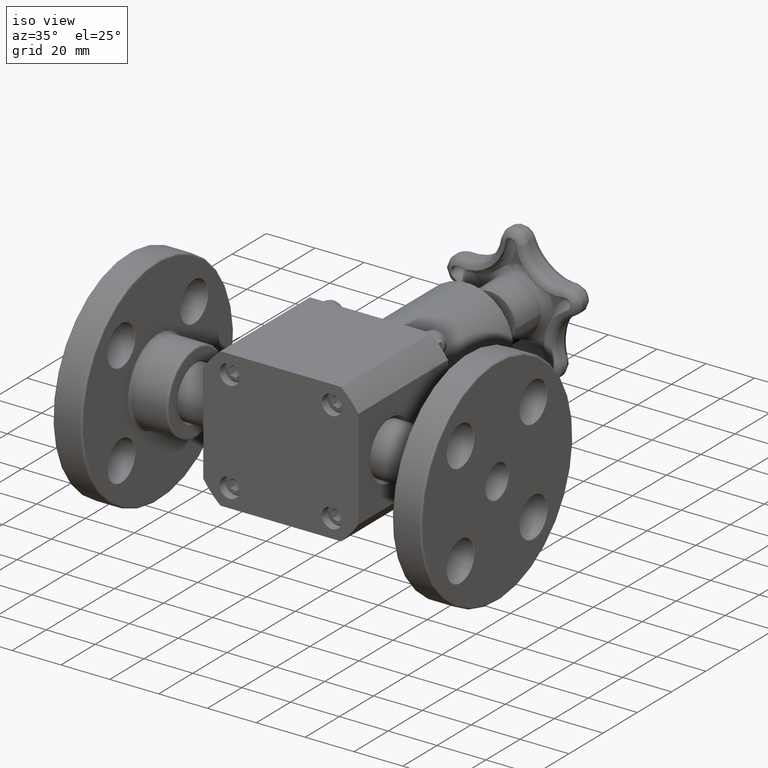
[diagram: clean part render]
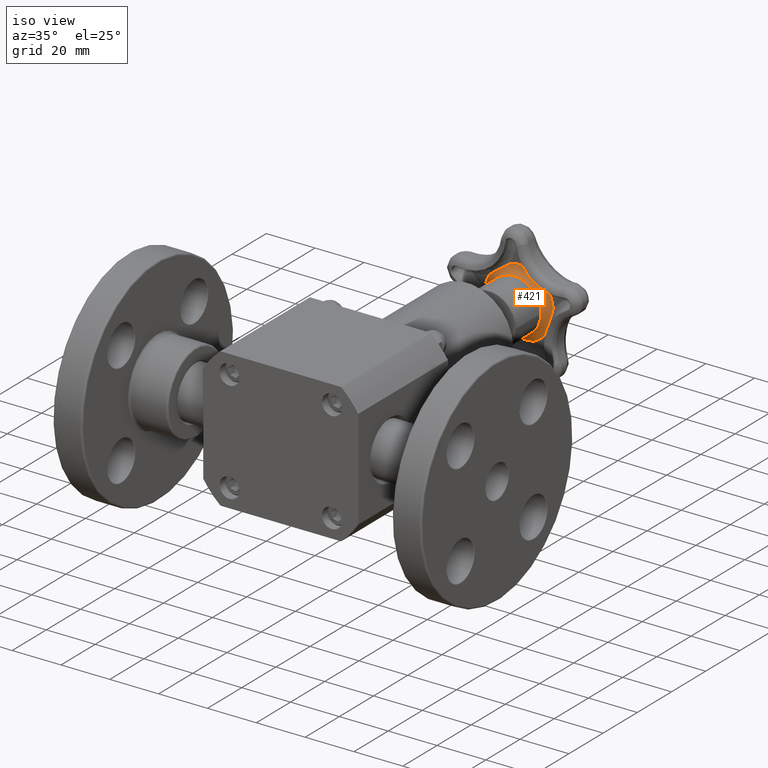
[diagram: same view with one face highlighted and labeled with its STEP entity id]
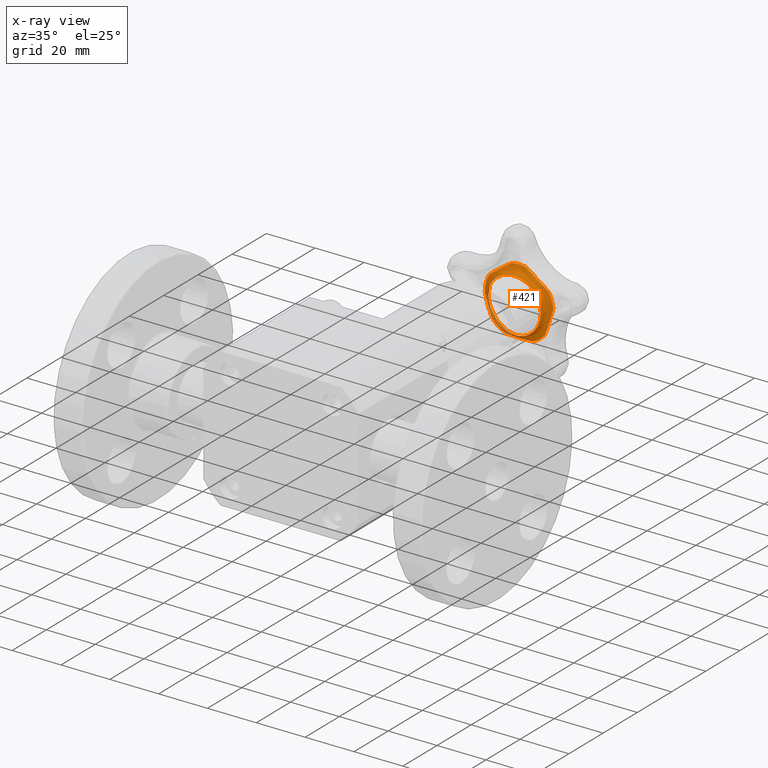
[diagram: x-ray of the same camera — body ghosted, the highlighted face saturated]
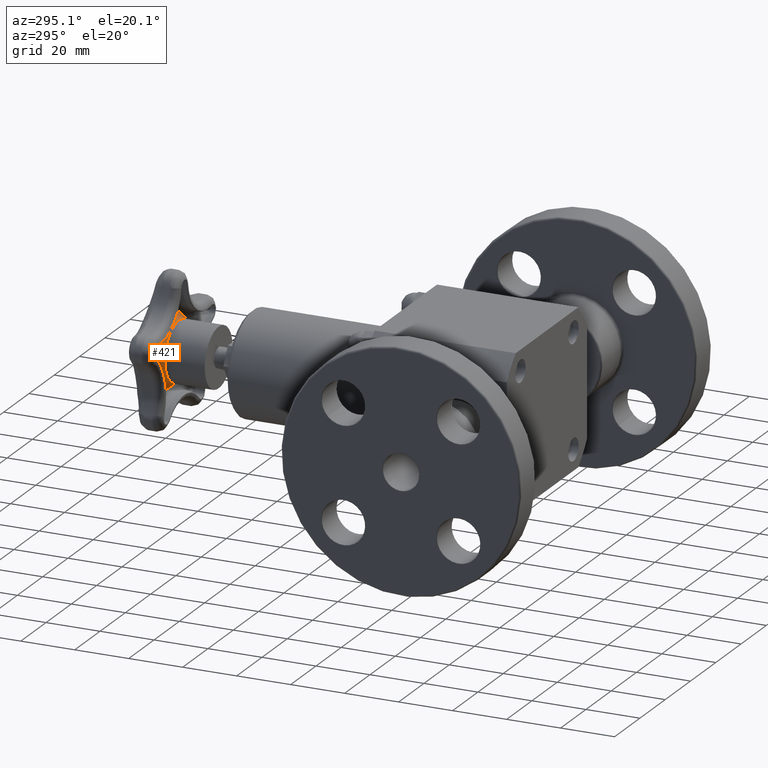
[diagram: same view with one face highlighted and labeled with its STEP entity id]
A machine part, iso view. The second image highlights one B-rep face of the part: STEP entity #421.
The next image is the same camera in x-ray: the body ghosted, the highlighted face saturated — about 10% of this face is hidden behind the body in this view.
A second angle (auxiliary view) of the same face is appended — the face is thin or edge-on in the first view.
In plain terms, the highlighted face is a freeform B-spline surface patch.
Its self-contained STEP definition (entity closure, byte-faithful):
#215=CARTESIAN_POINT('',(1.744997E-016,5.367500000000001,0.435000000000001));
#216=CARTESIAN_POINT('',(1.744997E-016,5.487500000000001,0.435000000000001));
#217=CARTESIAN_POINT('',(1.598039E-016,5.487500000000001,0.555000000000000));
#218=CARTESIAN_POINT('',(1.451082E-016,5.487500000000001,0.675000000000000));
#219=CARTESIAN_POINT('',(1.451082E-016,5.367500000000001,0.675000000000000));
#220=CARTESIAN_POINT('',(-0.435000000000000,5.367500000000001,0.435000000000000));
#221=CARTESIAN_POINT('',(-0.435000000000000,5.487500000000001,0.435000000000000));
#222=CARTESIAN_POINT('',(-0.555000000000000,5.487500000000001,0.555000000000000));
#223=CARTESIAN_POINT('',(-0.675000000000000,5.487500000000001,0.675000000000000));
#224=CARTESIAN_POINT('',(-0.675000000000000,5.367500000000001,0.675000000000000));
#225=CARTESIAN_POINT('',(-0.435000000000000,5.367500000000001,4.712427E-016));
#226=CARTESIAN_POINT('',(-0.435000000000000,5.487500000000001,4.712427E-016));
#227=CARTESIAN_POINT('',(-0.555000000000000,5.487500000000001,4.565469E-016));
#228=CARTESIAN_POINT('',(-0.675000000000000,5.487500000000001,4.418512E-016));
#229=CARTESIAN_POINT('',(-0.675000000000000,5.367500000000001,4.418512E-016));
#230=CARTESIAN_POINT('',(-0.435000000000000,5.367500000000001,-0.434999999999999));
#231=CARTESIAN_POINT('',(-0.435000000000000,5.487500000000001,-0.434999999999999));
#232=CARTESIAN_POINT('',(-0.554999999999999,5.487500000000001,-0.554999999999999));
#233=CARTESIAN_POINT('',(-0.674999999999999,5.487500000000001,-0.674999999999999));
#234=CARTESIAN_POINT('',(-0.674999999999999,5.367500000000001,-0.674999999999999));
#235=CARTESIAN_POINT('',(2.810440E-016,5.367500000000001,-0.435000000000000));
#236=CARTESIAN_POINT('',(2.810440E-016,5.487500000000001,-0.434999999999999));
#237=CARTESIAN_POINT('',(2.957397E-016,5.487500000000001,-0.554999999999999));
#238=CARTESIAN_POINT('',(3.104355E-016,5.487500000000001,-0.674999999999999));
#239=CARTESIAN_POINT('',(3.104355E-016,5.367500000000001,-0.674999999999999));
#240=CARTESIAN_POINT('',(0.435000000000000,5.367500000000001,-0.434999999999999));
#241=CARTESIAN_POINT('',(0.435000000000000,5.487500000000001,-0.434999999999999));
#242=CARTESIAN_POINT('',(0.555000000000000,5.487500000000001,-0.554999999999999));
#243=CARTESIAN_POINT('',(0.675000000000000,5.487500000000001,-0.674999999999999));
#244=CARTESIAN_POINT('',(0.675000000000000,5.367500000000001,-0.674999999999999));
#245=CARTESIAN_POINT('',(0.435000000000000,5.367500000000001,5.777870E-016));
#246=CARTESIAN_POINT('',(0.435000000000000,5.487500000000001,5.777870E-016));
#247=CARTESIAN_POINT('',(0.555000000000000,5.487500000000001,5.924827E-016));
#248=CARTESIAN_POINT('',(0.675000000000000,5.487500000000001,6.071785E-016));
#249=CARTESIAN_POINT('',(0.675000000000000,5.367500000000001,6.071785E-016));
#250=CARTESIAN_POINT('',(0.435000000000000,5.367500000000001,0.435000000000000));
#251=CARTESIAN_POINT('',(0.435000000000000,5.487500000000001,0.435000000000000));
#252=CARTESIAN_POINT('',(0.555000000000000,5.487500000000001,0.555000000000000));
#253=CARTESIAN_POINT('',(0.675000000000000,5.487500000000001,0.675000000000000));
#254=CARTESIAN_POINT('',(0.675000000000000,5.367500000000001,0.675000000000000));
#255=CARTESIAN_POINT('',(1.744997E-016,5.367500000000001,0.435000000000001));
#256=CARTESIAN_POINT('',(1.744997E-016,5.487500000000001,0.435000000000001));
#257=CARTESIAN_POINT('',(1.598039E-016,5.487500000000001,0.555000000000000));
#258=CARTESIAN_POINT('',(1.451082E-016,5.487500000000001,0.675000000000000));
#259=CARTESIAN_POINT('',(1.451082E-016,5.367500000000001,0.675000000000000));
#267=(BOUNDED_SURFACE()B_SPLINE_SURFACE(2,2,((#215,#220,#225,#230,#235,#240,#245,#250,#255),(#216,#221,#226,#231,#236,#241,#246,#251,#256),(#217,#222,#227,#232,#237,#242,#247,#252,#257),(#218,#223,#228,#233,#238,#243,#248,#253,#258),(#219,#224,#229,#234,#239,#244,#249,#254,#259)),.UNSPECIFIED.,.F.,.T.,.U.)B_SPLINE_SURFACE_WITH_KNOTS((3,2,3),(3,2,2,2,3),(-3.141592653589793,-1.570796326794897,7.843043E-031),(0.0,1.570796326794897,3.141592653589793,4.712388980384690,6.283185307179586),.UNSPECIFIED.)GEOMETRIC_REPRESENTATION_ITEM()RATIONAL_B_SPLINE_SURFACE(((1.0,0.707106781186548,1.0,0.707106781186548,1.0,0.707106781186548,1.0,0.707106781186548,1.0),(0.707106781186554,0.500000000000005,0.707106781186554,0.500000000000005,0.707106781186554,0.500000000000005,0.707106781186554,0.500000000000005,0.707106781186554),(1.0,0.707106781186548,1.0,0.707106781186548,1.0,0.707106781186548,1.0,0.707106781186548,1.0),(0.707106781186555,0.500000000000006,0.707106781186555,0.500000000000006,0.707106781186555,0.500000000000006,0.707106781186555,0.500000000000006,0.707106781186555),(1.0,0.707106781186548,1.0,0.707106781186548,1.0,0.707106781186548,1.0,0.707106781186548,1.0)))REPRESENTATION_ITEM('')SURFACE());
#268=CARTESIAN_POINT('',(0.223682078461397,5.487500000000001,-0.507928467183312));
#269=VERTEX_POINT('',#268);
#270=CARTESIAN_POINT('',(-0.223682078461397,5.487500000000001,-0.507928467183312));
#271=VERTEX_POINT('',#270);
#272=CARTESIAN_POINT('',(0.223682078461397,5.487500000000001,-0.507928467183312));
#273=CARTESIAN_POINT('',(0.223474883508022,5.487500000000001,-0.507941174144947));
#274=CARTESIAN_POINT('',(0.223267687417790,5.487499935421756,-0.507953865579059));
#275=CARTESIAN_POINT('',(0.187613410014228,5.487477791731457,-0.510135119347337));
#276=CARTESIAN_POINT('',(0.152140013589845,5.485635708257850,-0.511857791585199));
#277=CARTESIAN_POINT('',(0.077470317366944,5.482141000588991,-0.514330412883462));
#278=CARTESIAN_POINT('',(0.039883884550260,5.480637084989848,-0.515000000000000));
#279=CARTESIAN_POINT('',(-0.039883884550260,5.480637084989848,-0.515000000000000));
#280=CARTESIAN_POINT('',(-0.077470317366945,5.482141000588991,-0.514330412883462));
#281=CARTESIAN_POINT('',(-0.152140013588909,5.485635708257806,-0.511857791585230));
#282=CARTESIAN_POINT('',(-0.187613410011726,5.487477791731456,-0.510135119347479));
#283=CARTESIAN_POINT('',(-0.223267687417836,5.487499935421756,-0.507953865579056));
#284=CARTESIAN_POINT('',(-0.223474883507975,5.487500000000001,-0.507941174144949));
#285=CARTESIAN_POINT('',(-0.223682078461397,5.487500000000001,-0.507928467183312));
#286=B_SPLINE_CURVE_WITH_KNOTS('',3,(#272,#273,#274,#275,#276,#277,#278,#279,#280,#281,#282,#283,#284,#285),.UNSPECIFIED.,.F.,.U.,(4,2,2,2,2,2,4),(-0.001581791888280,0.0,0.270611803019740,0.551455441110656,0.832299079201574,1.102910882214405,1.104492674102888),.UNSPECIFIED.);
#287=EDGE_CURVE('',#269,#271,#286,.T.);
#288=ORIENTED_EDGE('',*,*,#287,.F.);
#289=CARTESIAN_POINT('',(0.413947114944817,5.487500000000001,-0.369692826585616));
#290=VERTEX_POINT('',#289);
#291=CARTESIAN_POINT('',(2.277718E-016,5.487500000000001,5.245148E-016));
#292=DIRECTION('',(0.0,-1.0,0.0));
#293=DIRECTION('',(-1.0,0.0,0.0));
#294=AXIS2_PLACEMENT_3D('',#291,#292,#293);
#295=CIRCLE('',#294,0.555000000000000);
#296=EDGE_CURVE('',#269,#290,#295,.T.);
#297=ORIENTED_EDGE('',*,*,#296,.T.);
#298=CARTESIAN_POINT('',(0.552190242108181,5.487500000000001,0.055775770012695));
#299=VERTEX_POINT('',#298);
#300=CARTESIAN_POINT('',(0.552190242108181,5.487500000000001,0.055775770012695));
#301=CARTESIAN_POINT('',(0.552138580792345,5.487500000000001,0.055575874229194));
#302=CARTESIAN_POINT('',(0.552086904516195,5.487499936117117,0.055375982106362));
#303=CARTESIAN_POINT('',(0.543251834810678,5.487478177957666,0.021211042804099));
#304=CARTESIAN_POINT('',(0.534036007789774,5.485677685729792,-0.012679717371059));
#305=CARTESIAN_POINT('',(0.513402144415728,5.482186876480415,-0.084251627248747));
#306=CARTESIAN_POINT('',(0.502274625196795,5.480637084989848,-0.120732663303345));
#307=CARTESIAN_POINT('',(0.477313586587214,5.480637084989848,-0.197554840902850));
#308=CARTESIAN_POINT('',(0.464872923759321,5.482186876480415,-0.233609210734917));
#309=CARTESIAN_POINT('',(0.439497156783995,5.485677685729796,-0.303640382734997));
#310=CARTESIAN_POINT('',(0.427032428441129,5.487478177957666,-0.336475510879700));
#311=CARTESIAN_POINT('',(0.414098502512123,5.487499936117117,-0.369308651062686));
#312=CARTESIAN_POINT('',(0.414022815855896,5.487500000000001,-0.369500741740083));
#313=CARTESIAN_POINT('',(0.413947114944816,5.487500000000001,-0.369692826585616));
#314=B_SPLINE_CURVE_WITH_KNOTS('',3,(#300,#301,#302,#303,#304,#305,#306,#307,#308,#309,#310,#311,#312,#313),.UNSPECIFIED.,.F.,.U.,(4,2,2,2,2,2,4),(-0.001573252589378,0.0,0.267327684360961,0.550960356813384,0.834593029265810,1.101920713627411,1.103493966216929),.UNSPECIFIED.);
#315=EDGE_CURVE('',#299,#290,#314,.T.);
#316=ORIENTED_EDGE('',*,*,#315,.F.);
#317=CARTESIAN_POINT('',(0.479515465042254,5.487500000000001,0.279445734956381));
#318=VERTEX_POINT('',#317);
#319=CARTESIAN_POINT('',(2.277718E-016,5.487500000000001,5.245148E-016));
#320=DIRECTION('',(0.0,-1.0,0.0));
#321=DIRECTION('',(-1.0,0.0,0.0));
#322=AXIS2_PLACEMENT_3D('',#319,#320,#321);
#323=CIRCLE('',#322,0.555000000000000);
#324=EDGE_CURVE('',#299,#318,#323,.T.);
#325=ORIENTED_EDGE('',*,*,#324,.T.);
#326=CARTESIAN_POINT('',(0.117590259417492,5.487500000000001,0.542399788799855));
#327=VERTEX_POINT('',#326);
#328=CARTESIAN_POINT('',(0.117590259417492,5.487500000000001,0.542399788799855));
#329=CARTESIAN_POINT('',(0.117750769325218,5.487500000000001,0.542297570005199));
#330=CARTESIAN_POINT('',(0.117911272342543,5.487499945731050,0.542195340088188));
#331=CARTESIAN_POINT('',(0.142994842791995,5.487483039563726,0.526216321036509));
#332=CARTESIAN_POINT('',(0.168082096656793,5.486177674317339,0.509854163644707));
#333=CARTESIAN_POINT('',(0.227537373227383,5.482837710890023,0.470033187760289));
#334=CARTESIAN_POINT('',(0.262540350627757,5.480637084989848,0.445828278363888));
#335=CARTESIAN_POINT('',(0.342878459233492,5.480637084989848,0.387459225842308));
#336=CARTESIAN_POINT('',(0.376715210911712,5.482837710890023,0.361649144446743));
#337=CARTESIAN_POINT('',(0.432959900376964,5.486177674317314,0.317409174517372));
#338=CARTESIAN_POINT('',(0.456273624571668,5.487483039563726,0.298605962951893));
#339=CARTESIAN_POINT('',(0.479221824313504,5.487499945731050,0.279687858264195));
#340=CARTESIAN_POINT('',(0.479368648902271,5.487500000000001,0.279566801605347));
#341=CARTESIAN_POINT('',(0.479515465042254,5.487500000000001,0.279445734956381));
#342=B_SPLINE_CURVE_WITH_KNOTS('',3,(#328,#329,#330,#331,#332,#333,#334,#335,#336,#337,#338,#339,#340,#341),.UNSPECIFIED.,.F.,.U.,(4,2,2,2,2,2,4),(-0.001450046407075,0.0,0.225174805719536,0.541986630373525,0.858798455027522,1.083973260742981,1.085423307149854),.UNSPECIFIED.);
#343=EDGE_CURVE('',#327,#318,#342,.T.);
#344=ORIENTED_EDGE('',*,*,#343,.F.);
#345=CARTESIAN_POINT('',(-0.117590259417491,5.487500000000001,0.542399788799855));
#346=VERTEX_POINT('',#345);
#347=CARTESIAN_POINT('',(2.277718E-016,5.487500000000001,5.245148E-016));
#348=DIRECTION('',(0.0,-1.0,0.0));
#349=DIRECTION('',(-1.0,0.0,0.0));
#350=AXIS2_PLACEMENT_3D('',#347,#348,#349);
#351=CIRCLE('',#350,0.555000000000000);
#352=EDGE_CURVE('',#327,#346,#351,.T.);
#353=ORIENTED_EDGE('',*,*,#352,.T.);
#354=CARTESIAN_POINT('',(-0.479515465042253,5.487500000000001,0.279445734956381));
#355=VERTEX_POINT('',#354);
#356=CARTESIAN_POINT('',(-0.479515465042253,5.487500000000001,0.279445734956381));
#357=CARTESIAN_POINT('',(-0.479368724837123,5.487500000000001,0.279566738988403));
#358=CARTESIAN_POINT('',(-0.479221976211093,5.487499945787182,0.279687733024885));
#359=CARTESIAN_POINT('',(-0.456305633738695,5.487483071791671,0.298579577861375));
#360=CARTESIAN_POINT('',(-0.433023474285637,5.486181167991972,0.317357866999792));
#361=CARTESIAN_POINT('',(-0.376799468765217,5.482843109791661,0.361584700158323));
#362=CARTESIAN_POINT('',(-0.342928362329444,5.480637084989848,0.387422969120820));
#363=CARTESIAN_POINT('',(-0.262490447531806,5.480637084989848,0.445864535085375));
#364=CARTESIAN_POINT('',(-0.227450045958301,5.482843109791660,0.470093407360601));
#365=CARTESIAN_POINT('',(-0.168013654889107,5.486181167992029,0.509898771130332));
#366=CARTESIAN_POINT('',(-0.142959857702627,5.487483071791671,0.526238610122353));
#367=CARTESIAN_POINT('',(-0.117911106293976,5.487499945787182,0.542195445850285));
#368=CARTESIAN_POINT('',(-0.117750686307771,5.487500000000001,0.542297622873856));
#369=CARTESIAN_POINT('',(-0.117590259417491,5.487500000000001,0.542399788799855));
#370=B_SPLINE_CURVE_WITH_KNOTS('',3,(#356,#357,#358,#359,#360,#361,#362,#363,#364,#365,#366,#367,#368,#369),.UNSPECIFIED.,.F.,.U.,(4,2,2,2,2,2,4),(-0.001449296427658,0.0,0.224860962605044,0.541868204574230,0.858875446543390,1.083736409157839,1.085185705585466),.UNSPECIFIED.);
#371=EDGE_CURVE('',#355,#346,#370,.T.);
#372=ORIENTED_EDGE('',*,*,#371,.F.);
#373=CARTESIAN_POINT('',(-0.554988777946154,5.487500000000001,0.003529356008483));
#374=VERTEX_POINT('',#373);
#375=CARTESIAN_POINT('',(2.277718E-016,5.487500000000001,5.245148E-016));
#376=DIRECTION('',(0.0,-1.0,0.0));
#377=DIRECTION('',(-1.0,0.0,0.0));
#378=AXIS2_PLACEMENT_3D('',#375,#376,#377);
#379=CIRCLE('',#378,0.555000000000000);
#380=EDGE_CURVE('',#355,#374,#379,.T.);
#381=ORIENTED_EDGE('',*,*,#380,.T.);
#382=CARTESIAN_POINT('',(-0.446920849633947,5.487500000000001,-0.329069527854632));
#383=VERTEX_POINT('',#382);
#384=CARTESIAN_POINT('',(-0.446920849633947,5.487500000000001,-0.329069527854632));
#385=CARTESIAN_POINT('',(-0.447006606315002,5.487500000000001,-0.328850128086534));
#386=CARTESIAN_POINT('',(-0.447092338976472,5.487499953442660,-0.328630718511146));
#387=CARTESIAN_POINT('',(-0.453077582573135,5.487493487656203,-0.313308123566029));
#388=CARTESIAN_POINT('',(-0.458903669644965,5.487270540487380,-0.298051918289983));
#389=CARTESIAN_POINT('',(-0.478487210821910,5.486286014397718,-0.245509798691003));
#390=CARTESIAN_POINT('',(-0.491822065177886,5.485262635485758,-0.207707429252774));
#391=CARTESIAN_POINT('',(-0.519979772643858,5.485262635485758,-0.121046916540156));
#392=CARTESIAN_POINT('',(-0.531411324109860,5.486286014397718,-0.082626126505076));
#393=CARTESIAN_POINT('',(-0.546451389512969,5.487270540487435,-0.028607742134566));
#394=CARTESIAN_POINT('',(-0.550705358528186,5.487493487656204,-0.012840724737646));
#395=CARTESIAN_POINT('',(-0.554869590077918,5.487499953442660,0.003073552885759));
#396=CARTESIAN_POINT('',(-0.554929196610488,5.487500000000001,0.003301451355212));
#397=CARTESIAN_POINT('',(-0.554988777946154,5.487500000000001,0.003529356008482));
#398=B_SPLINE_CURVE_WITH_KNOTS('',3,(#384,#385,#386,#387,#388,#389,#390,#391,#392,#393,#394,#395,#396,#397),.UNSPECIFIED.,.F.,.U.,(4,2,2,2,2,2,4),(-0.001794998787764,0.0,0.123554603068021,0.426139541404274,0.728724479740562,0.852279082832155,0.854074081619829),.UNSPECIFIED.);
#399=EDGE_CURVE('',#383,#374,#398,.T.);
#400=ORIENTED_EDGE('',*,*,#399,.F.);
#401=CARTESIAN_POINT('',(2.277718E-016,5.487500000000001,5.245148E-016));
#402=DIRECTION('',(0.0,-1.0,0.0));
#403=DIRECTION('',(-1.0,0.0,0.0));
#404=AXIS2_PLACEMENT_3D('',#401,#402,#403);
#405=CIRCLE('',#404,0.555000000000000);
#406=EDGE_CURVE('',#383,#271,#405,.T.);
#407=ORIENTED_EDGE('',*,*,#406,.T.);
#408=EDGE_LOOP('',(#288,#297,#316,#325,#344,#353,#372,#381,#400,#407));
#409=FACE_OUTER_BOUND('',#408,.T.);
#410=CARTESIAN_POINT('',(0.435000000000000,5.367500000000001,1.535197E-016));
#411=VERTEX_POINT('',#410);
#412=CARTESIAN_POINT('',(2.277718E-016,5.367500000000001,5.245148E-016));
#413=DIRECTION('',(0.0,1.0,0.0));
#414=DIRECTION('',(-1.0,0.0,0.0));
#415=AXIS2_PLACEMENT_3D('',#412,#413,#414);
#416=CIRCLE('',#415,0.435000000000000);
#417=EDGE_CURVE('',#411,#411,#416,.T.);
#418=ORIENTED_EDGE('',*,*,#417,.T.);
#419=EDGE_LOOP('',(#418));
#420=FACE_BOUND('',#419,.T.);
#421=ADVANCED_FACE('',(#409,#420),#267,.T.);